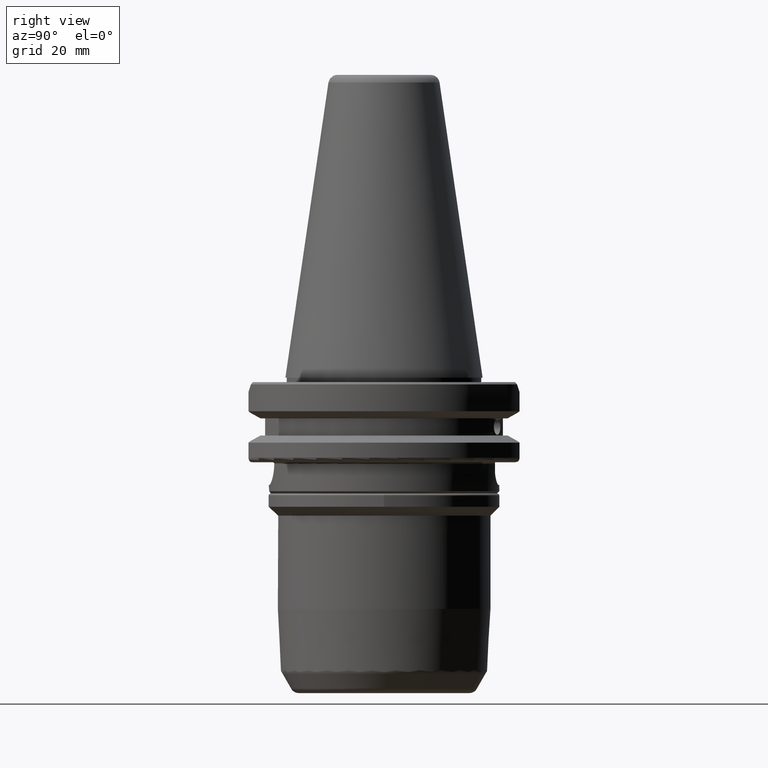
[diagram: clean part render]
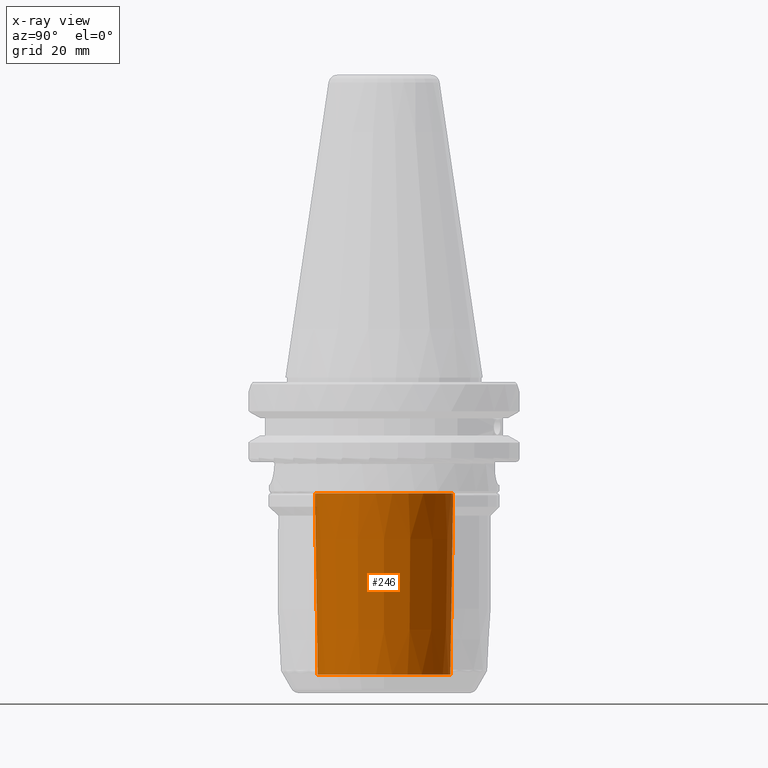
[diagram: x-ray — body ghosted, one internal face saturated and labeled with its STEP entity id]
A machine part, right view, then the same camera in x-ray: the body is ghosted and one INTERNAL B-rep face — a face not visible from any outside direction — is saturated and labeled: STEP entity #246.
In plain terms, the highlighted conical surface has half-angle 0.895 deg.
Its self-contained STEP definition (entity closure, byte-faithful):
#128 = AXIS2_PLACEMENT_3D ( 'NONE', #2098, #1105, #656 ) ;
#246 = ADVANCED_FACE ( 'NONE', ( #2907, #4641 ), #3312, .T. ) ;
#326 = CARTESIAN_POINT ( 'NONE',  ( -2.357599053161568542E-13, 14.94843750000000071, -67.00000000000000000 ) ) ;
#418 = CIRCLE ( 'NONE', #3504, 14.94843750000000071 ) ;
#656 = DIRECTION ( 'NONE',  ( -1.224646799149997370E-16, 1.000000000000000000, 0.000000000000000000 ) ) ;
#724 = VERTEX_POINT ( 'NONE', #326 ) ;
#944 = DIRECTION ( 'NONE',  ( -3.078600669508857418E-15, 6.644440193742600202E-15, 1.000000000000000000 ) ) ;
#1033 = DIRECTION ( 'NONE',  ( -0.2938119377117210940, 0.9558632461069332953, -7.395401032069735973E-15 ) ) ;
#1105 = DIRECTION ( 'NONE',  ( -3.491481338843133355E-15, 0.000000000000000000, -1.000000000000000000 ) ) ;
#1386 = CARTESIAN_POINT ( 'NONE',  ( -2.339292497024899474E-13, 0.000000000000000000, -67.00000000000000000 ) ) ;
#1468 = ORIENTED_EDGE ( 'NONE', *, *, #2306, .F. ) ;
#1794 = AXIS2_PLACEMENT_3D ( 'NONE', #3326, #944, #1033 ) ;
#2050 = EDGE_CURVE ( 'NONE', #3009, #3009, #2643, .T. ) ;
#2098 = CARTESIAN_POINT ( 'NONE',  ( -9.112766294380578688E-14, 0.000000000000000000, -26.10000000000000142 ) ) ;
#2306 = EDGE_CURVE ( 'NONE', #724, #724, #418, .T. ) ;
#2348 = DIRECTION ( 'NONE',  ( -3.491481338843133355E-15, 0.000000000000000000, -1.000000000000000000 ) ) ;
#2643 = CIRCLE ( 'NONE', #128, 15.58750000000000036 ) ;
#2864 = DIRECTION ( 'NONE',  ( -1.224646799149999096E-16, 1.000000000000000000, 0.000000000000000000 ) ) ;
#2907 = FACE_OUTER_BOUND ( 'NONE', #5263, .T. ) ;
#3009 = VERTEX_POINT ( 'NONE', #3106 ) ;
#3106 = CARTESIAN_POINT ( 'NONE',  ( -9.303658114198084296E-14, 15.58750000000000036, -26.10000000000000142 ) ) ;
#3123 = ORIENTED_EDGE ( 'NONE', *, *, #2050, .T. ) ;
#3312 = CONICAL_SURFACE ( 'NONE', #1794, 15.01234374999729582, 0.01562372862046792175 ) ;
#3326 = CARTESIAN_POINT ( 'NONE',  ( -7.053716643001274762E-13, 3.261835246348710320E-12, -62.90999999999999659 ) ) ;
#3356 = EDGE_LOOP ( 'NONE', ( #1468 ) ) ;
#3504 = AXIS2_PLACEMENT_3D ( 'NONE', #1386, #2348, #2864 ) ;
#4641 = FACE_BOUND ( 'NONE', #3356, .T. ) ;
#5263 = EDGE_LOOP ( 'NONE', ( #3123 ) ) ;